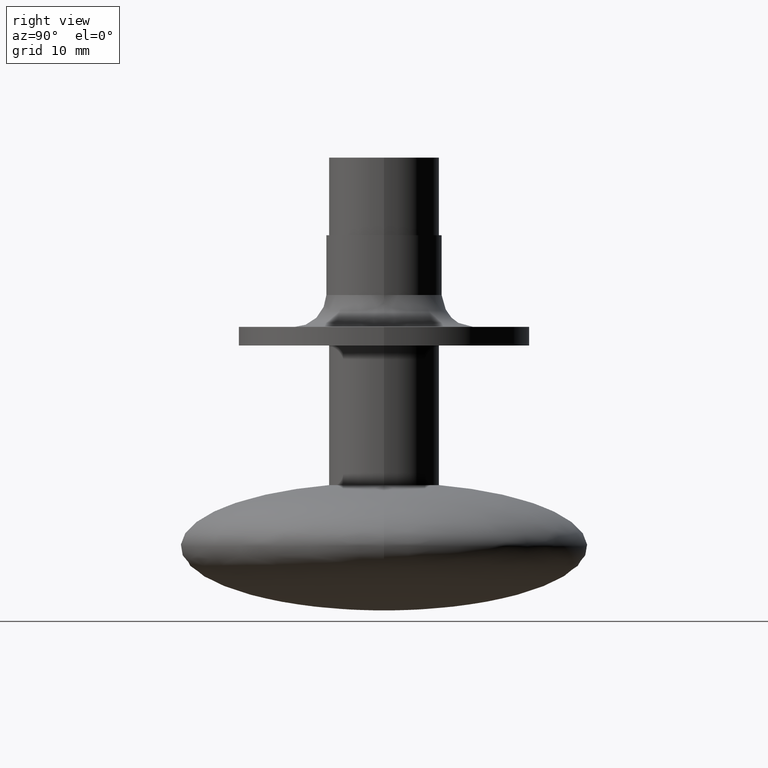
[diagram: clean part render]
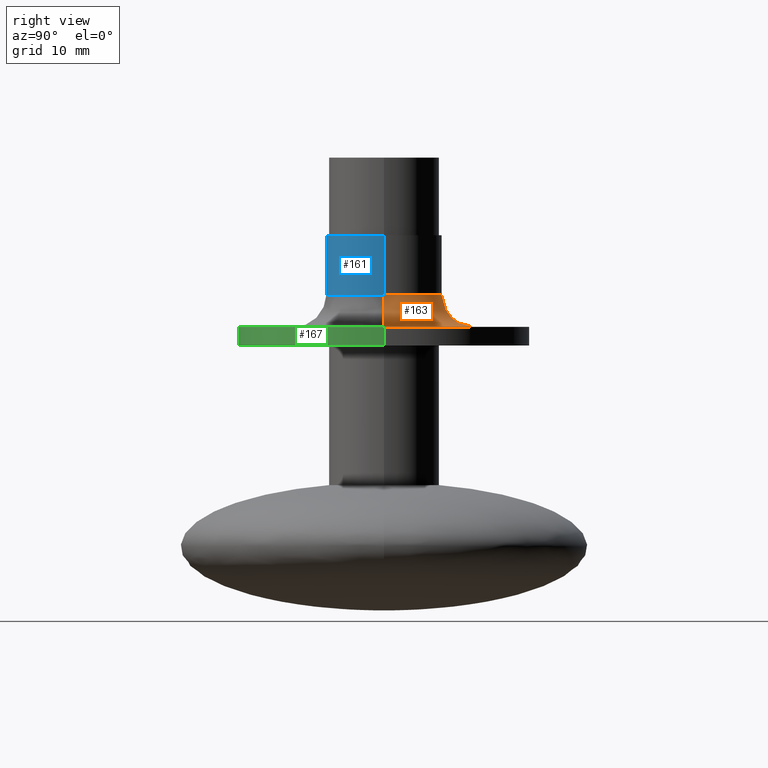
[diagram: same view with three faces highlighted in distinct colors, each labeled with its STEP entity id]
A machine part, right view with three faces highlighted in distinct colors.
Their STEP definitions:

[orange] entity #163 — the highlighted face is a freeform B-spline surface patch.
#163=ADVANCED_FACE('',(#327),#326,.F.);
#326=( BOUNDED_SURFACE() B_SPLINE_SURFACE( 2,2,((#608,#609,#610,#611,#612),(#613,#614,#615,#616,#617),(#618,#619,#620,#621,#622),(#623,#624,#625,#626,#627),(#628,#629,#630,#631,#632)), .UNSPECIFIED.,.F.,.F.,.F.) B_SPLINE_SURFACE_WITH_KNOTS((3,2,3),(3,2,3),(0.00000000000E+00,5.00000000000E-01,1.00000000000E+00),(0.00000000000E+00,5.00000000000E-01,1.00000000000E+00), .UNSPECIFIED. ) GEOMETRIC_REPRESENTATION_ITEM() RATIONAL_B_SPLINE_SURFACE(((1.00000000000E+00,7.07106781187E-01,1.00000000000E+00,7.07106781187E-01,1.00000000000E+00),(7.07106781187E-01,5.00000000000E-01,7.07106781187E-01,5.00000000000E-01,7.07106781187E-01),(1.00000000000E+00,7.07106781187E-01,1.00000000000E+00,7.07106781187E-01,1.00000000000E+00),(7.07106781187E-01,5.00000000000E-01,7.07106781187E-01,5.00000000000E-01,7.07106781187E-01),(1.00000000000E+00,7.07106781187E-01,1.00000000000E+00,7.07106781187E-01,1.00000000000E+00))) REPRESENTATION_ITEM('') SURFACE() );
#327=FACE_OUTER_BOUND('',#633,.T.);
#608=CARTESIAN_POINT('',(-1.05000000000E+01,-4.24675912247E-20,-1.18347590000E+01));
#609=CARTESIAN_POINT('',(-1.05000000000E+01,-4.24675912247E-20,-1.45847590000E+01));
#610=CARTESIAN_POINT('',(-7.75000000000E+00,-3.13451268564E-20,-1.45847590000E+01));
#611=CARTESIAN_POINT('',(-5.00000000000E+00,-2.02226624880E-20,-1.45847590000E+01));
#612=CARTESIAN_POINT('',(-5.00000000000E+00,-2.02226624880E-20,-1.18347590000E+01));
#613=CARTESIAN_POINT('',(-1.05000000000E+01,1.05000000000E+01,-1.18347590000E+01));
#614=CARTESIAN_POINT('',(-1.05000000000E+01,1.05000000000E+01,-1.45847590000E+01));
#615=CARTESIAN_POINT('',(-7.75000000000E+00,7.75000000000E+00,-1.45847590000E+01));
#616=CARTESIAN_POINT('',(-5.00000000000E+00,5.00000000000E+00,-1.45847590000E+01));
#617=CARTESIAN_POINT('',(-5.00000000000E+00,5.00000000000E+00,-1.18347590000E+01));
#618=CARTESIAN_POINT('',(-6.42982037144E-16,1.05000000000E+01,-1.18347590000E+01));
#619=CARTESIAN_POINT('',(-6.42982037144E-16,1.05000000000E+01,-1.45847590000E+01));
#620=CARTESIAN_POINT('',(-4.74581979796E-16,7.75000000000E+00,-1.45847590000E+01));
#621=CARTESIAN_POINT('',(-3.06181922449E-16,5.00000000000E+00,-1.45847590000E+01));
#622=CARTESIAN_POINT('',(-3.06181922449E-16,5.00000000000E+00,-1.18347590000E+01));
#623=CARTESIAN_POINT('',(1.05000000000E+01,1.05000000000E+01,-1.18347590000E+01));
#624=CARTESIAN_POINT('',(1.05000000000E+01,1.05000000000E+01,-1.45847590000E+01));
#625=CARTESIAN_POINT('',(7.75000000000E+00,7.75000000000E+00,-1.45847590000E+01));
#626=CARTESIAN_POINT('',(5.00000000000E+00,5.00000000000E+00,-1.45847590000E+01));
#627=CARTESIAN_POINT('',(5.00000000000E+00,5.00000000000E+00,-1.18347590000E+01));
#628=CARTESIAN_POINT('',(1.05000000000E+01,1.28592160670E-15,-1.18347590000E+01));
#629=CARTESIAN_POINT('',(1.05000000000E+01,1.28592160670E-15,-1.45847590000E+01));
#630=CARTESIAN_POINT('',(7.75000000000E+00,9.49132614466E-16,-1.45847590000E+01));
#631=CARTESIAN_POINT('',(5.00000000000E+00,6.12343622236E-16,-1.45847590000E+01));
#632=CARTESIAN_POINT('',(5.00000000000E+00,6.12343622236E-16,-1.18347590000E+01));
#633=EDGE_LOOP('',(#809,#810,#811,#812));
#809=ORIENTED_EDGE('',*,*,#892,.T.);
#810=ORIENTED_EDGE('',*,*,#895,.F.);
#811=ORIENTED_EDGE('',*,*,#871,.F.);
#812=ORIENTED_EDGE('',*,*,#896,.T.);
#871=EDGE_CURVE('',#1013,#1014,#1015,.T.);
#892=EDGE_CURVE('',#1152,#1145,#1153,.T.);
#895=EDGE_CURVE('',#1014,#1145,#1171,.T.);
#896=EDGE_CURVE('',#1013,#1152,#1177,.T.);
#1013=VERTEX_POINT('',#1370);
#1014=VERTEX_POINT('',#1371);
#1015=CIRCLE('',#1375,7.75000000000E+00);
#1145=VERTEX_POINT('',#1448);
#1152=VERTEX_POINT('',#1451);
#1153=CIRCLE('',#1455,5.00000000000E+00);
#1171=(BOUNDED_CURVE() B_SPLINE_CURVE(2,(#1462,#1463,#1464),.UNSPECIFIED.,.F.,.F.) B_SPLINE_CURVE_WITH_KNOTS((3,3),(5.00000000000E-01,1.00000000000E+00),.UNSPECIFIED.) CURVE() GEOMETRIC_REPRESENTATION_ITEM() RATIONAL_B_SPLINE_CURVE((1.00000000000E+00,7.07106781187E-01,1.00000000000E+00)) REPRESENTATION_ITEM('') );
#1177=(BOUNDED_CURVE() B_SPLINE_CURVE(2,(#1465,#1466,#1467),.UNSPECIFIED.,.F.,.F.) B_SPLINE_CURVE_WITH_KNOTS((3,3),(5.00000622604E-01,1.00000000000E+00),.UNSPECIFIED.) CURVE() GEOMETRIC_REPRESENTATION_ITEM() RATIONAL_B_SPLINE_CURVE((7.49999452931E-01,5.30330359425E-01,7.50000000000E-01)) REPRESENTATION_ITEM('') );
#1370=CARTESIAN_POINT('',(-7.75000000000E+00,0.00000000000E+00,-1.45847590000E+01));
#1371=CARTESIAN_POINT('',(7.75000000000E+00,8.88178419700E-16,-1.45847590000E+01));
#1372=CARTESIAN_POINT('',(0.00000000000E+00,0.00000000000E+00,-1.45847590000E+01));
#1373=DIRECTION('',(-0.00000000000E+00,0.00000000000E+00,-1.00000000000E+00));
#1374=DIRECTION('',(-1.00000000000E+00,-1.22460635382E-16,0.00000000000E+00));
#1375=AXIS2_PLACEMENT_3D('',#1372,#1373,#1374);
#1448=CARTESIAN_POINT('',(5.00000000000E+00,2.96059473233E-16,-1.18347590000E+01));
#1451=CARTESIAN_POINT('',(-5.00000000000E+00,0.00000000000E+00,-1.18347590000E+01));
#1452=CARTESIAN_POINT('',(0.00000000000E+00,0.00000000000E+00,-1.18347590000E+01));
#1453=DIRECTION('',(-0.00000000000E+00,0.00000000000E+00,-1.00000000000E+00));
#1454=DIRECTION('',(-1.00000000000E+00,-1.22460635382E-16,0.00000000000E+00));
#1455=AXIS2_PLACEMENT_3D('',#1452,#1453,#1454);
#1462=CARTESIAN_POINT('',(7.75000000000E+00,-9.49069924212E-16,-1.45847590000E+01));
#1463=CARTESIAN_POINT('',(5.00000000000E+00,-6.12303176911E-16,-1.45847590000E+01));
#1464=CARTESIAN_POINT('',(5.00000000000E+00,-6.12303176911E-16,-1.18347590000E+01));
#1465=CARTESIAN_POINT('',(-7.74999515728E+00,1.48029549669E-15,-1.45847590000E+01));
#1466=CARTESIAN_POINT('',(-5.00000000000E+00,4.18691627720E-16,-1.45847541573E+01));
#1467=CARTESIAN_POINT('',(-5.00000000000E+00,5.92118946467E-16,-1.18347590000E+01));

[blue] entity #161 — the highlighted cylindrical surface (partial cylindrical patch) has radius 5 mm, axis along (0, 0, 1).
#161=ADVANCED_FACE('',(#307),#306,.T.);
#306=CYLINDRICAL_SURFACE('',#580,5.00000000000E+00);
#307=FACE_OUTER_BOUND('',#581,.T.);
#577=CARTESIAN_POINT('',(0.00000000000E+00,0.00000000000E+00,0.00000000000E+00));
#578=DIRECTION('',(-0.00000000000E+00,-0.00000000000E+00,1.00000000000E+00));
#579=DIRECTION('',(1.00000000000E+00,-0.00000000000E+00,-0.00000000000E+00));
#580=AXIS2_PLACEMENT_3D('',#577,#578,#579);
#581=EDGE_LOOP('',(#801,#802,#803,#804));
#801=ORIENTED_EDGE('',*,*,#894,.F.);
#802=ORIENTED_EDGE('',*,*,#891,.T.);
#803=ORIENTED_EDGE('',*,*,#877,.T.);
#804=ORIENTED_EDGE('',*,*,#893,.F.);
#877=EDGE_CURVE('',#1055,#1056,#1057,.T.);
#891=EDGE_CURVE('',#1145,#1055,#1146,.T.);
#893=EDGE_CURVE('',#1152,#1056,#1159,.T.);
#894=EDGE_CURVE('',#1145,#1152,#1165,.T.);
#1055=VERTEX_POINT('',#1400);
#1056=VERTEX_POINT('',#1401);
#1057=CIRCLE('',#1405,5.00000000000E+00);
#1145=VERTEX_POINT('',#1448);
#1146=(BOUNDED_CURVE() B_SPLINE_CURVE(1,(#1449,#1450),.UNSPECIFIED.,.F.,.F.) B_SPLINE_CURVE_WITH_KNOTS((2,2),(8.33333283663E-02,9.16666663731E-01),.UNSPECIFIED.) CURVE() GEOMETRIC_REPRESENTATION_ITEM() RATIONAL_B_SPLINE_CURVE((1.00000000000E+00,1.00000000000E+00)) REPRESENTATION_ITEM('') );
#1152=VERTEX_POINT('',#1451);
#1159=(BOUNDED_CURVE() B_SPLINE_CURVE(1,(#1456,#1457),.UNSPECIFIED.,.F.,.F.) B_SPLINE_CURVE_WITH_KNOTS((2,2),(8.33333333333E-02,9.16666666667E-01),.UNSPECIFIED.) CURVE() GEOMETRIC_REPRESENTATION_ITEM() RATIONAL_B_SPLINE_CURVE((7.50000000000E-01,7.50000000000E-01)) REPRESENTATION_ITEM('') );
#1165=CIRCLE('',#1461,5.00000000000E+00);
#1400=CARTESIAN_POINT('',(5.00000000000E+00,2.96059473233E-16,-6.68475900000E+00));
#1401=CARTESIAN_POINT('',(-5.00000000000E+00,0.00000000000E+00,-6.68475900000E+00));
#1402=CARTESIAN_POINT('',(0.00000000000E+00,0.00000000000E+00,-6.68475900000E+00));
#1403=DIRECTION('',(-0.00000000000E+00,0.00000000000E+00,-1.00000000000E+00));
#1404=DIRECTION('',(-1.00000000000E+00,-1.22460635382E-16,0.00000000000E+00));
#1405=AXIS2_PLACEMENT_3D('',#1402,#1403,#1404);
#1448=CARTESIAN_POINT('',(5.00000000000E+00,2.96059473233E-16,-1.18347590000E+01));
#1449=CARTESIAN_POINT('',(5.00000000000E+00,0.00000000000E+00,-1.18347590307E+01));
#1450=CARTESIAN_POINT('',(5.00000000000E+00,0.00000000000E+00,-6.68475901814E+00));
#1451=CARTESIAN_POINT('',(-5.00000000000E+00,0.00000000000E+00,-1.18347590000E+01));
#1456=CARTESIAN_POINT('',(-5.00000000000E+00,-2.96059473233E-16,-1.18347590000E+01));
#1457=CARTESIAN_POINT('',(-5.00000000000E+00,-2.96059473233E-16,-6.68475900000E+00));
#1458=CARTESIAN_POINT('',(0.00000000000E+00,0.00000000000E+00,-1.18347590000E+01));
#1459=DIRECTION('',(-0.00000000000E+00,0.00000000000E+00,-1.00000000000E+00));
#1460=DIRECTION('',(-1.00000000000E+00,-1.22460635382E-16,0.00000000000E+00));
#1461=AXIS2_PLACEMENT_3D('',#1458,#1459,#1460);

[green] entity #167 — the highlighted cylindrical surface (partial cylindrical patch) has radius 12.5 mm, axis along (0, 0, 1).
#167=ADVANCED_FACE('',(#367),#366,.T.);
#366=CYLINDRICAL_SURFACE('',#652,1.25000000000E+01);
#367=FACE_OUTER_BOUND('',#653,.T.);
#649=CARTESIAN_POINT('',(0.00000000000E+00,0.00000000000E+00,0.00000000000E+00));
#650=DIRECTION('',(-0.00000000000E+00,-0.00000000000E+00,1.00000000000E+00));
#651=DIRECTION('',(1.00000000000E+00,-0.00000000000E+00,-0.00000000000E+00));
#652=AXIS2_PLACEMENT_3D('',#649,#650,#651);
#653=EDGE_LOOP('',(#825,#826,#827,#828));
#825=ORIENTED_EDGE('',*,*,#858,.F.);
#826=ORIENTED_EDGE('',*,*,#899,.T.);
#827=ORIENTED_EDGE('',*,*,#867,.T.);
#828=ORIENTED_EDGE('',*,*,#900,.F.);
#858=EDGE_CURVE('',#916,#915,#923,.T.);
#867=EDGE_CURVE('',#985,#986,#987,.T.);
#899=EDGE_CURVE('',#916,#985,#1195,.T.);
#900=EDGE_CURVE('',#915,#986,#1201,.T.);
#915=VERTEX_POINT('',#1300);
#916=VERTEX_POINT('',#1301);
#923=CIRCLE('',#1309,1.25000000000E+01);
#985=VERTEX_POINT('',#1350);
#986=VERTEX_POINT('',#1351);
#987=CIRCLE('',#1355,1.25000000000E+01);
#1195=(BOUNDED_CURVE() B_SPLINE_CURVE(1,(#1472,#1473),.UNSPECIFIED.,.F.,.F.) B_SPLINE_CURVE_WITH_KNOTS((2,2),(8.33333134656E-02,9.16666653270E-01),.UNSPECIFIED.) CURVE() GEOMETRIC_REPRESENTATION_ITEM() RATIONAL_B_SPLINE_CURVE((1.00000000000E+00,1.00000000000E+00)) REPRESENTATION_ITEM('') );
#1201=(BOUNDED_CURVE() B_SPLINE_CURVE(1,(#1474,#1475),.UNSPECIFIED.,.F.,.F.) B_SPLINE_CURVE_WITH_KNOTS((2,2),(8.33333333333E-02,9.16666666667E-01),.UNSPECIFIED.) CURVE() GEOMETRIC_REPRESENTATION_ITEM() RATIONAL_B_SPLINE_CURVE((7.50000000000E-01,7.50000000000E-01)) REPRESENTATION_ITEM('') );
#1300=CARTESIAN_POINT('',(-1.25000000000E+01,0.00000000000E+00,-1.61847590000E+01));
#1301=CARTESIAN_POINT('',(1.25000000000E+01,0.00000000000E+00,-1.61847590000E+01));
#1306=CARTESIAN_POINT('',(0.00000000000E+00,0.00000000000E+00,-1.61847590000E+01));
#1307=DIRECTION('',(-0.00000000000E+00,0.00000000000E+00,-1.00000000000E+00));
#1308=DIRECTION('',(-1.00000000000E+00,-1.22460635382E-16,0.00000000000E+00));
#1309=AXIS2_PLACEMENT_3D('',#1306,#1307,#1308);
#1350=CARTESIAN_POINT('',(1.25000000000E+01,0.00000000000E+00,-1.45847590000E+01));
#1351=CARTESIAN_POINT('',(-1.25000000000E+01,0.00000000000E+00,-1.45847590000E+01));
#1352=CARTESIAN_POINT('',(0.00000000000E+00,0.00000000000E+00,-1.45847590000E+01));
#1353=DIRECTION('',(-0.00000000000E+00,0.00000000000E+00,-1.00000000000E+00));
#1354=DIRECTION('',(-1.00000000000E+00,-1.22460635382E-16,0.00000000000E+00));
#1355=AXIS2_PLACEMENT_3D('',#1352,#1353,#1354);
#1472=CARTESIAN_POINT('',(1.25000000000E+01,0.00000000000E+00,-1.61847590381E+01));
#1473=CARTESIAN_POINT('',(1.25000000000E+01,0.00000000000E+00,-1.45847590257E+01));
#1474=CARTESIAN_POINT('',(-1.25000000000E+01,0.00000000000E+00,-1.61847590000E+01));
#1475=CARTESIAN_POINT('',(-1.25000000000E+01,0.00000000000E+00,-1.45847590000E+01));